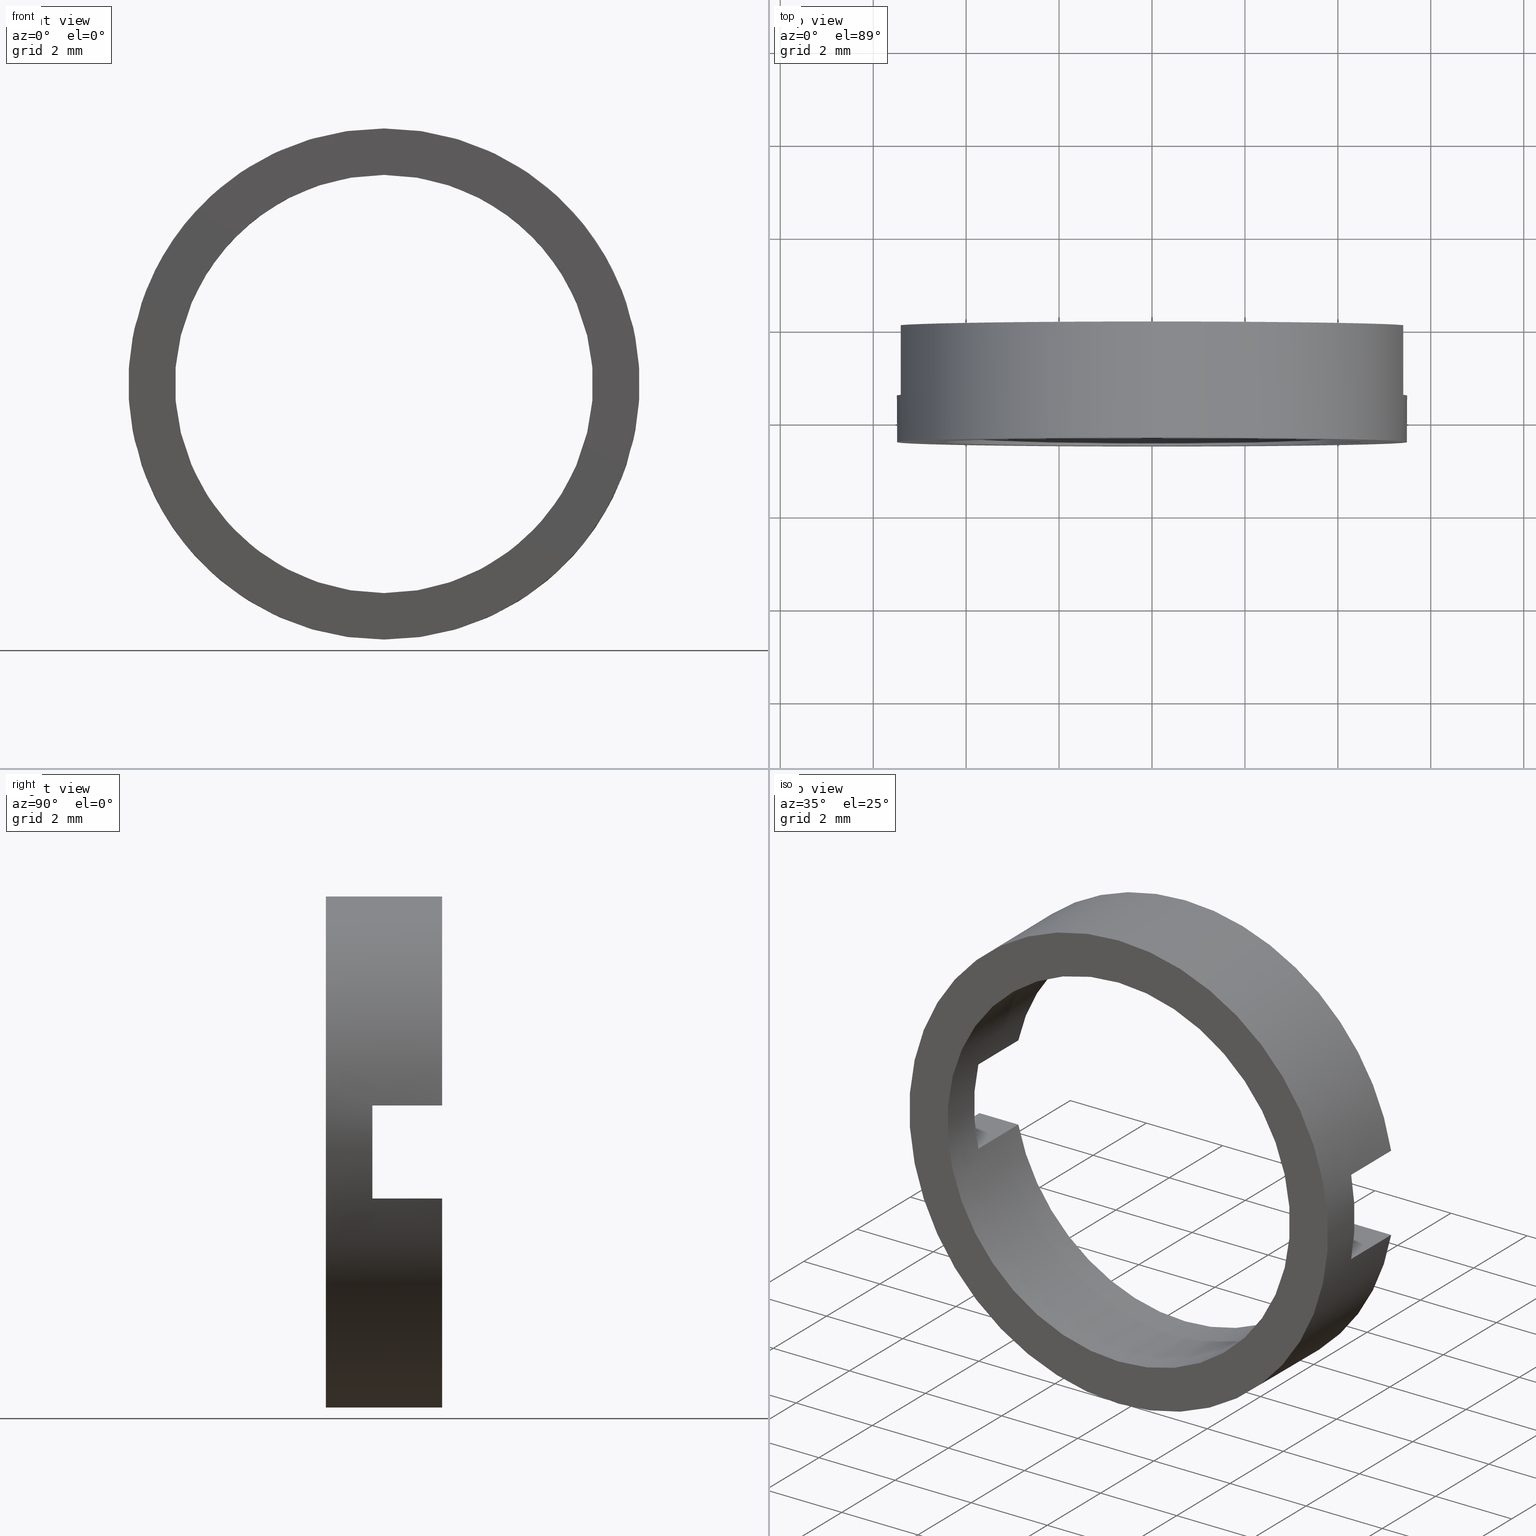
[diagram: canonical four-view strip — front | top / right | iso, engineering-drawing reading convention]
A machine part, canonical four-view strip (front | top / right | iso — engineering-drawing reading convention). The complete STEP part file that produces these views, byte-faithful:
ISO-10303-21;
HEADER;
FILE_DESCRIPTION (( 'STEP AP203' ),
    '1' );
FILE_NAME ('514017.STEP',
    '2019-09-25T08:50:53',
    ( '' ),
    ( '' ),
    'SwSTEP 2.0',
    'SolidWorks 2016',
    '' );
FILE_SCHEMA (( 'CONFIG_CONTROL_DESIGN' ));
ENDSEC;

DATA;
#1 = PERSON_AND_ORGANIZATION ( #82, #79 ) ;
#2 = ADVANCED_FACE ( 'NONE', ( #105 ), #249, .F. ) ;
#3 = ORIENTED_EDGE ( 'NONE', *, *, #559, .T. ) ;
#4 = DIRECTION ( 'NONE',  ( 0.0000000000000000000, -0.0000000000000000000, -1.000000000000000000 ) ) ;
#5 = DIRECTION ( 'NONE',  ( 0.0000000000000000000, 0.0000000000000000000, 1.000000000000000000 ) ) ;
#6 = CALENDAR_DATE ( 2019, 25, 9 ) ;
#7 = CARTESIAN_POINT ( 'NONE',  ( 0.0000000000000000000, -1.964249787179434000, 0.0000000000000000000 ) ) ;
#8 = ORIENTED_EDGE ( 'NONE', *, *, #97, .F. ) ;
#9 = LINE ( 'NONE', #203, #224 ) ;
#10 = CARTESIAN_POINT ( 'NONE',  ( 5.408326913195989700, -3.464249787179428400, 0.9999999999999995600 ) ) ;
#11 = EDGE_LOOP ( 'NONE', ( #159, #90, #284, #441 ) ) ;
#12 = AXIS2_PLACEMENT_3D ( 'NONE', #389, #346, #77 ) ;
#13 = CARTESIAN_POINT ( 'NONE',  ( 0.0000000000000000000, -3.464249787179428400, 0.0000000000000000000 ) ) ;
#14 = CARTESIAN_POINT ( 'NONE',  ( 0.0000000000000000000, -1.964249787179434000, 0.0000000000000000000 ) ) ;
#15 = CC_DESIGN_PERSON_AND_ORGANIZATION_ASSIGNMENT ( #318, #236, ( #543 ) ) ;
#16 = DIRECTION ( 'NONE',  ( 0.0000000000000000000, 1.000000000000000000, 0.0000000000000000000 ) ) ;
#17 = LOCAL_TIME ( 16, 50, 53.00000000000000000, #470 ) ;
#18 = VERTEX_POINT ( 'NONE', #451 ) ;
#19 = DIRECTION ( 'NONE',  ( -0.0000000000000000000, 1.000000000000000000, -0.0000000000000000000 ) ) ;
#20 = CARTESIAN_POINT ( 'NONE',  ( 6.735557395310450900E-016, -1.964249787179434000, -5.500000000000006200 ) ) ;
#21 = DATE_AND_TIME ( #463, #88 ) ;
#22 = AXIS2_PLACEMENT_3D ( 'NONE', #237, #550, #325 ) ;
#23 = CYLINDRICAL_SURFACE ( 'NONE', #22, 5.500000000000006200 ) ;
#24 = CC_DESIGN_PERSON_AND_ORGANIZATION_ASSIGNMENT ( #402, #412, ( #535 ) ) ;
#25 = CARTESIAN_POINT ( 'NONE',  ( 0.0000000000000000000, 56.26084262701361600, 0.0000000000000000000 ) ) ;
#26 = CARTESIAN_POINT ( 'NONE',  ( 5.408326913195990600, 56.26084262701361600, 1.000000000000000000 ) ) ;
#27 = UNCERTAINTY_MEASURE_WITH_UNIT (LENGTH_MEASURE( 1.000000000000000100E-005 ), #544, 'distance_accuracy_value', 'NONE');
#28 = CARTESIAN_POINT ( 'NONE',  ( -26.85254027261461800, -1.964249787179430900, 1.000000000000000000 ) ) ;
#29 = CC_DESIGN_PERSON_AND_ORGANIZATION_ASSIGNMENT ( #348, #536, ( #125 ) ) ;
#30 = FACE_OUTER_BOUND ( 'NONE', #185, .T. ) ;
#31 = AXIS2_PLACEMENT_3D ( 'NONE', #254, #214, #431 ) ;
#32 = EDGE_LOOP ( 'NONE', ( #314, #225 ) ) ;
#33 = CARTESIAN_POINT ( 'NONE',  ( 0.0000000000000000000, 56.26084262701361600, 5.500000000000006200 ) ) ;
#34 = COORDINATED_UNIVERSAL_TIME_OFFSET ( 8, 0, .AHEAD. ) ;
#35 = ORIENTED_EDGE ( 'NONE', *, *, #168, .T. ) ;
#36 = ORIENTED_EDGE ( 'NONE', *, *, #196, .F. ) ;
#37 = PERSON_AND_ORGANIZATION_ROLE ( 'creator' ) ;
#38 = APPLICATION_CONTEXT ( 'configuration controlled 3d designs of mechanical parts and assemblies' ) ;
#39 = EDGE_CURVE ( 'NONE', #310, #571, #260, .T. ) ;
#40 = ADVANCED_FACE ( 'NONE', ( #456 ), #48, .F. ) ;
#41 = CYLINDRICAL_SURFACE ( 'NONE', #440, 4.500000000000007100 ) ;
#42 = AXIS2_PLACEMENT_3D ( 'NONE', #7, #491, #85 ) ;
#43 = ORIENTED_EDGE ( 'NONE', *, *, #65, .F. ) ;
#44 = EDGE_CURVE ( 'NONE', #435, #418, #563, .T. ) ;
#45 = CARTESIAN_POINT ( 'NONE',  ( 4.500000000000007100, -1.964249787179430900, 0.0000000000000000000 ) ) ;
#46 = CARTESIAN_POINT ( 'NONE',  ( -26.85254027261461800, -3.464249787179431100, -1.000000000000000000 ) ) ;
#47 = COORDINATED_UNIVERSAL_TIME_OFFSET ( 8, 0, .AHEAD. ) ;
#48 = PLANE ( 'NONE',  #204 ) ;
#49 = VECTOR ( 'NONE', #481, 1000.000000000000000 ) ;
#50 = ORIENTED_EDGE ( 'NONE', *, *, #496, .F. ) ;
#51 = ORIENTED_EDGE ( 'NONE', *, *, #213, .T. ) ;
#52 = APPLICATION_PROTOCOL_DEFINITION ( 'international standard', 'config_control_design', 1994, #38 ) ;
#53 = AXIS2_PLACEMENT_3D ( 'NONE', #406, #410, #182 ) ;
#54 = DATE_TIME_ROLE ( 'classification_date' ) ;
#55 = DIRECTION ( 'NONE',  ( 0.0000000000000000000, 1.000000000000000000, 0.0000000000000000000 ) ) ;
#56 = CC_DESIGN_APPROVAL ( #323, ( #543 ) ) ;
#57 = CARTESIAN_POINT ( 'NONE',  ( 0.0000000000000000000, -3.464249787179431100, 0.0000000000000000000 ) ) ;
#58 = CIRCLE ( 'NONE', #311, 5.500000000000006200 ) ;
#59 = LINE ( 'NONE', #462, #524 ) ;
#60 = ORIENTED_EDGE ( 'NONE', *, *, #510, .T. ) ;
#61 = CC_DESIGN_DATE_AND_TIME_ASSIGNMENT ( #513, #353, ( #226 ) ) ;
#62 = AXIS2_PLACEMENT_3D ( 'NONE', #246, #158, #469 ) ;
#63 = CARTESIAN_POINT ( 'NONE',  ( -4.387482193696067500, -3.464249787179428400, 0.9999999999999995600 ) ) ;
#64 = DIRECTION ( 'NONE',  ( 0.0000000000000000000, 0.0000000000000000000, -1.000000000000000000 ) ) ;
#65 = EDGE_CURVE ( 'NONE', #96, #290, #488, .T. ) ;
#66 = CARTESIAN_POINT ( 'NONE',  ( 0.0000000000000000000, -1.964249787179434000, 4.500000000000007100 ) ) ;
#67 = DATE_AND_TIME ( #433, #215 ) ;
#68 = VECTOR ( 'NONE', #219, 1000.000000000000000 ) ;
#69 = ORIENTED_EDGE ( 'NONE', *, *, #526, .T. ) ;
#70 = ORIENTED_EDGE ( 'NONE', *, *, #39, .T. ) ;
#71 = DIRECTION ( 'NONE',  ( 0.0000000000000000000, -0.0000000000000000000, -1.000000000000000000 ) ) ;
#72 = CIRCLE ( 'NONE', #381, 5.500000000000006200 ) ;
#73 = CARTESIAN_POINT ( 'NONE',  ( -26.85254027261461800, -3.464249787179431100, -1.000000000000000000 ) ) ;
#74 = ORIENTED_EDGE ( 'NONE', *, *, #153, .F. ) ;
#75 = ORIENTED_EDGE ( 'NONE', *, *, #243, .T. ) ;
#76 = CARTESIAN_POINT ( 'NONE',  ( -5.408326913195989700, -3.464249787179428400, 0.9999999999999995600 ) ) ;
#77 = DIRECTION ( 'NONE',  ( 0.0000000000000000000, 0.0000000000000000000, 1.000000000000000000 ) ) ;
#78 = LOCAL_TIME ( 16, 50, 53.00000000000000000, #390 ) ;
#79 = ORGANIZATION ( 'δָ��', 'δָ��', '' ) ;
#80 = ORIENTED_EDGE ( 'NONE', *, *, #516, .T. ) ;
#81 = DIRECTION ( 'NONE',  ( -0.0000000000000000000, 1.000000000000000000, -0.0000000000000000000 ) ) ;
#82 = PERSON ( 'δָ��', 'δָ��', 'δָ��', ('δָ��'), ('δָ��'), ('δָ��') ) ;
#83 = DIRECTION ( 'NONE',  ( 1.000000000000000000, 0.0000000000000000000, 0.0000000000000000000 ) ) ;
#84 = AXIS2_PLACEMENT_3D ( 'NONE', #99, #273, #277 ) ;
#85 = DIRECTION ( 'NONE',  ( 0.0000000000000000000, 0.0000000000000000000, 1.000000000000000000 ) ) ;
#86 = ADVANCED_FACE ( 'NONE', ( #232 ), #98, .F. ) ;
#87 = SECURITY_CLASSIFICATION ( '', '', #534 ) ;
#88 = LOCAL_TIME ( 16, 50, 53.00000000000000000, #335 ) ;
#89 = APPLICATION_PROTOCOL_DEFINITION ( 'international standard', 'config_control_design', 1994, #438 ) ;
#90 = ORIENTED_EDGE ( 'NONE', *, *, #404, .F. ) ;
#91 = ORIENTED_EDGE ( 'NONE', *, *, #548, .T. ) ;
#92 = ADVANCED_FACE ( 'NONE', ( #359 ), #328, .T. ) ;
#93 = DATE_TIME_ROLE ( 'creation_date' ) ;
#94 = EDGE_CURVE ( 'NONE', #377, #96, #111, .T. ) ;
#95 = VECTOR ( 'NONE', #366, 1000.000000000000000 ) ;
#96 = VERTEX_POINT ( 'NONE', #321 ) ;
#97 = EDGE_CURVE ( 'NONE', #322, #201, #133, .T. ) ;
#98 = PLANE ( 'NONE',  #387 ) ;
#99 = CARTESIAN_POINT ( 'NONE',  ( 0.0000000000000000000, 56.26084262701361600, 0.0000000000000000000 ) ) ;
#100 = LOCAL_TIME ( 16, 50, 53.00000000000000000, #47 ) ;
#101 = PERSON_AND_ORGANIZATION_ROLE ( 'creator' ) ;
#102 = DIRECTION ( 'NONE',  ( 0.0000000000000000000, 0.0000000000000000000, -1.000000000000000000 ) ) ;
#103 = APPROVAL_DATE_TIME ( #287, #323 ) ;
#104 = ORIENTED_EDGE ( 'NONE', *, *, #229, .T. ) ;
#105 = FACE_OUTER_BOUND ( 'NONE', #546, .T. ) ;
#106 = AXIS2_PLACEMENT_3D ( 'NONE', #14, #365, #415 ) ;
#107 = CARTESIAN_POINT ( 'NONE',  ( 0.0000000000000000000, -3.464249787179428400, 0.0000000000000000000 ) ) ;
#108 = CC_DESIGN_PERSON_AND_ORGANIZATION_ASSIGNMENT ( #530, #490, ( #221 ) ) ;
#109 = DIRECTION ( 'NONE',  ( 0.0000000000000000000, 1.000000000000000000, 0.0000000000000000000 ) ) ;
#110 = PERSON_AND_ORGANIZATION ( #82, #79 ) ;
#111 = CIRCLE ( 'NONE', #106, 4.500000000000007100 ) ;
#112 = DIRECTION ( 'NONE',  ( 0.0000000000000000000, -1.000000000000000000, 0.0000000000000000000 ) ) ;
#113 = VERTEX_POINT ( 'NONE', #10 ) ;
#114 = DIRECTION ( 'NONE',  ( -0.0000000000000000000, 1.000000000000000000, -0.0000000000000000000 ) ) ;
#115 = AXIS2_PLACEMENT_3D ( 'NONE', #414, #421, #509 ) ;
#116 = CARTESIAN_POINT ( 'NONE',  ( 0.0000000000000000000, -4.464249787179428900, 5.500000000000006200 ) ) ;
#117 = APPROVAL_PERSON_ORGANIZATION ( #199, #166, #134 ) ;
#118 = VECTOR ( 'NONE', #297, 1000.000000000000000 ) ;
#119 = ORIENTED_EDGE ( 'NONE', *, *, #466, .T. ) ;
#120 = CIRCLE ( 'NONE', #138, 5.500000000000006200 ) ;
#121 = CC_DESIGN_DATE_AND_TIME_ASSIGNMENT ( #21, #54, ( #87 ) ) ;
#122 = DIRECTION ( 'NONE',  ( -1.000000000000000000, -0.0000000000000000000, -0.0000000000000000000 ) ) ;
#123 = CARTESIAN_POINT ( 'NONE',  ( 5.510910596163098400E-016, -1.964249787179434000, -4.500000000000007100 ) ) ;
#124 = CARTESIAN_POINT ( 'NONE',  ( -4.387482193696068400, 56.26084262701361600, 1.000000000000000000 ) ) ;
#125 = PRODUCT_DEFINITION_FORMATION_WITH_SPECIFIED_SOURCE ( '�κ�', '', #221, .NOT_KNOWN. ) ;
#126 = DATE_AND_TIME ( #189, #485 ) ;
#127 = CIRCLE ( 'NONE', #250, 4.500000000000007100 ) ;
#128 = ORIENTED_EDGE ( 'NONE', *, *, #493, .F. ) ;
#129 = CARTESIAN_POINT ( 'NONE',  ( 0.0000000000000000000, -1.964249787179434000, 0.0000000000000000000 ) ) ;
#130 = EDGE_CURVE ( 'NONE', #385, #517, #59, .T. ) ;
#131 = CARTESIAN_POINT ( 'NONE',  ( 5.408326913195990600, 56.26084262701361600, -1.000000000000000000 ) ) ;
#132 = DIRECTION ( 'NONE',  ( 1.000000000000000000, 0.0000000000000000000, 0.0000000000000000000 ) ) ;
#133 = LINE ( 'NONE', #197, #464 ) ;
#134 = APPROVAL_ROLE ( '' ) ;
#135 = VERTEX_POINT ( 'NONE', #63 ) ;
#136 = APPROVAL_STATUS ( 'not_yet_approved' ) ;
#137 = ADVANCED_FACE ( 'NONE', ( #30 ), #317, .T. ) ;
#138 = AXIS2_PLACEMENT_3D ( 'NONE', #521, #114, #567 ) ;
#139 = CC_DESIGN_PERSON_AND_ORGANIZATION_ASSIGNMENT ( #235, #306, ( #87 ) ) ;
#140 = APPROVAL_PERSON_ORGANIZATION ( #1, #341, #349 ) ;
#141 = EDGE_CURVE ( 'NONE', #542, #308, #309, .T. ) ;
#142 = VECTOR ( 'NONE', #194, 1000.000000000000000 ) ;
#143 = VERTEX_POINT ( 'NONE', #505 ) ;
#144 = LINE ( 'NONE', #303, #68 ) ;
#145 = APPLICATION_PROTOCOL_DEFINITION ( 'international standard', 'config_control_design', 1994, #355 ) ;
#146 = VERTEX_POINT ( 'NONE', #282 ) ;
#147 = LINE ( 'NONE', #293, #362 ) ;
#148 = ORIENTED_EDGE ( 'NONE', *, *, #94, .F. ) ;
#149 = PRODUCT_DEFINITION ( 'δ֪', '', #125, #234 ) ;
#150 = CIRCLE ( 'NONE', #12, 4.500000000000007100 ) ;
#151 = FACE_OUTER_BOUND ( 'NONE', #295, .T. ) ;
#152 = ORIENTED_EDGE ( 'NONE', *, *, #427, .T. ) ;
#153 = EDGE_CURVE ( 'NONE', #135, #290, #127, .T. ) ;
#154 = DIRECTION ( 'NONE',  ( 1.000000000000000000, 0.0000000000000000000, 0.0000000000000000000 ) ) ;
#155 = DIRECTION ( 'NONE',  ( -0.0000000000000000000, 1.000000000000000000, -0.0000000000000000000 ) ) ;
#156 = APPROVAL_PERSON_ORGANIZATION ( #428, #253, #585 ) ;
#157 = APPROVAL_PERSON_ORGANIZATION ( #283, #195, #278 ) ;
#158 = DIRECTION ( 'NONE',  ( -0.0000000000000000000, 0.0000000000000000000, 1.000000000000000000 ) ) ;
#159 = ORIENTED_EDGE ( 'NONE', *, *, #356, .T. ) ;
#160 = ORIENTED_EDGE ( 'NONE', *, *, #493, .T. ) ;
#161 = CARTESIAN_POINT ( 'NONE',  ( 0.0000000000000000000, 56.26084262701361600, 4.500000000000007100 ) ) ;
#162 = CARTESIAN_POINT ( 'NONE',  ( -4.387482193696067500, -3.464249787179428400, -0.9999999999999995600 ) ) ;
#163 = AXIS2_PLACEMENT_3D ( 'NONE', #13, #16, #507 ) ;
#164 = CALENDAR_DATE ( 2019, 25, 9 ) ;
#165 = ORIENTED_EDGE ( 'NONE', *, *, #391, .T. ) ;
#166 = APPROVAL ( #397, 'δָ��' ) ;
#167 = CARTESIAN_POINT ( 'NONE',  ( -26.85254027261461800, -3.464249787179431100, 1.000000000000000000 ) ) ;
#168 = EDGE_CURVE ( 'NONE', #542, #272, #384, .T. ) ;
#169 = DIRECTION ( 'NONE',  ( 0.0000000000000000000, 0.0000000000000000000, 1.000000000000000000 ) ) ;
#170 = ADVANCED_FACE ( 'NONE', ( #448 ), #561, .F. ) ;
#171 = CARTESIAN_POINT ( 'NONE',  ( -4.387482193696067500, -1.964249787179434000, 0.9999999999999995600 ) ) ;
#172 = LINE ( 'NONE', #28, #49 ) ;
#173 = ORIENTED_EDGE ( 'NONE', *, *, #305, .T. ) ;
#174 = ORIENTED_EDGE ( 'NONE', *, *, #97, .T. ) ;
#175 = APPROVAL_STATUS ( 'not_yet_approved' ) ;
#176 = PERSON_AND_ORGANIZATION_ROLE ( 'creator' ) ;
#177 = CC_DESIGN_APPROVAL ( #253, ( #149 ) ) ;
#178 = DIRECTION ( 'NONE',  ( 1.000000000000000000, 0.0000000000000000000, 0.0000000000000000000 ) ) ;
#179 = ORIENTED_EDGE ( 'NONE', *, *, #141, .F. ) ;
#180 = ADVANCED_FACE ( 'NONE', ( #344 ), #23, .T. ) ;
#181 = EDGE_CURVE ( 'NONE', #146, #517, #434, .T. ) ;
#182 = DIRECTION ( 'NONE',  ( 0.0000000000000000000, 0.0000000000000000000, 1.000000000000000000 ) ) ;
#183 = APPROVAL_DATE_TIME ( #568, #195 ) ;
#184 = ORIENTED_EDGE ( 'NONE', *, *, #484, .T. ) ;
#185 = EDGE_LOOP ( 'NONE', ( #165, #174, #291, #80 ) ) ;
#186 = APPLICATION_CONTEXT ( 'configuration controlled 3d designs of mechanical parts and assemblies' ) ;
#187 = DIRECTION ( 'NONE',  ( 0.0000000000000000000, 0.0000000000000000000, 1.000000000000000000 ) ) ;
#188 = CARTESIAN_POINT ( 'NONE',  ( -26.85254027261461800, -1.964249787179430900, -1.000000000000000000 ) ) ;
#189 = CALENDAR_DATE ( 2019, 25, 9 ) ;
#190 = CIRCLE ( 'NONE', #380, 5.500000000000006200 ) ;
#191 = ORIENTED_EDGE ( 'NONE', *, *, #243, .F. ) ;
#192 = AXIS2_PLACEMENT_3D ( 'NONE', #407, #547, #5 ) ;
#193 = ORIENTED_EDGE ( 'NONE', *, *, #153, .T. ) ;
#194 = DIRECTION ( 'NONE',  ( -0.0000000000000000000, 1.000000000000000000, -0.0000000000000000000 ) ) ;
#195 = APPROVAL ( #549, 'δָ��' ) ;
#196 = EDGE_CURVE ( 'NONE', #556, #570, #216, .T. ) ;
#197 = CARTESIAN_POINT ( 'NONE',  ( -26.85254027261461800, -3.464249787179431100, -1.000000000000000000 ) ) ;
#198 = DIRECTION ( 'NONE',  ( -0.0000000000000000000, 1.000000000000000000, -0.0000000000000000000 ) ) ;
#199 = PERSON_AND_ORGANIZATION ( #82, #79 ) ;
#200 = SHAPE_DEFINITION_REPRESENTATION ( #411, #288 ) ;
#201 = VERTEX_POINT ( 'NONE', #280 ) ;
#202 = DIRECTION ( 'NONE',  ( -0.0000000000000000000, 1.000000000000000000, -0.0000000000000000000 ) ) ;
#203 = CARTESIAN_POINT ( 'NONE',  ( -26.85254027261461800, -1.964249787179430900, 1.000000000000000000 ) ) ;
#204 = AXIS2_PLACEMENT_3D ( 'NONE', #45, #312, #4 ) ;
#205 = DIRECTION ( 'NONE',  ( 0.0000000000000000000, 0.0000000000000000000, 1.000000000000000000 ) ) ;
#206 = LOCAL_TIME ( 16, 50, 53.00000000000000000, #392 ) ;
#207 = CC_DESIGN_PERSON_AND_ORGANIZATION_ASSIGNMENT ( #274, #267, ( #573 ) ) ;
#208 = ORIENTED_EDGE ( 'NONE', *, *, #537, .F. ) ;
#209 = FACE_OUTER_BOUND ( 'NONE', #409, .T. ) ;
#210 = ORIENTED_EDGE ( 'NONE', *, *, #352, .F. ) ;
#211 = CARTESIAN_POINT ( 'NONE',  ( 5.510910596163098400E-016, 56.26084262701361600, -4.500000000000007100 ) ) ;
#212 = DIRECTION ( 'NONE',  ( -0.0000000000000000000, 1.000000000000000000, -0.0000000000000000000 ) ) ;
#213 = EDGE_CURVE ( 'NONE', #272, #18, #120, .T. ) ;
#214 = DIRECTION ( 'NONE',  ( -0.0000000000000000000, -1.000000000000000000, -0.0000000000000000000 ) ) ;
#215 = LOCAL_TIME ( 16, 50, 53.00000000000000000, #329 ) ;
#216 = LINE ( 'NONE', #188, #95 ) ;
#217 = PRODUCT_DEFINITION_SHAPE ( 'NONE', 'NONE',  #543 ) ;
#218 = ORIENTED_EDGE ( 'NONE', *, *, #44, .F. ) ;
#219 = DIRECTION ( 'NONE',  ( 0.0000000000000000000, -1.000000000000000000, 0.0000000000000000000 ) ) ;
#220 = CARTESIAN_POINT ( 'NONE',  ( 4.387482193696067500, -1.964249787179434000, 0.9999999999999995600 ) ) ;
#221 = PRODUCT ( '514017', '514017', '', ( #261 ) ) ;
#222 = CALENDAR_DATE ( 2019, 25, 9 ) ;
#223 = CARTESIAN_POINT ( 'NONE',  ( 0.0000000000000000000, 0.0000000000000000000, 0.0000000000000000000 ) ) ;
#224 = VECTOR ( 'NONE', #154, 1000.000000000000000 ) ;
#225 = ORIENTED_EDGE ( 'NONE', *, *, #352, .T. ) ;
#226 = SECURITY_CLASSIFICATION ( '', '', #265 ) ;
#227 = CARTESIAN_POINT ( 'NONE',  ( 5.408326913195975500, -1.964249787179430900, -1.000000000000000000 ) ) ;
#228 = CC_DESIGN_PERSON_AND_ORGANIZATION_ASSIGNMENT ( #580, #101, ( #573 ) ) ;
#229 = EDGE_CURVE ( 'NONE', #201, #570, #506, .T. ) ;
#230 = ADVANCED_FACE ( 'NONE', ( #494, #271 ), #373, .F. ) ;
#231 = DATE_AND_TIME ( #222, #17 ) ;
#232 = FACE_OUTER_BOUND ( 'NONE', #241, .T. ) ;
#233 = ORIENTED_EDGE ( 'NONE', *, *, #168, .F. ) ;
#234 = DESIGN_CONTEXT ( 'detailed design', #186, 'design' ) ;
#235 = PERSON_AND_ORGANIZATION ( #82, #79 ) ;
#236 = PERSON_AND_ORGANIZATION_ROLE ( 'creator' ) ;
#237 = CARTESIAN_POINT ( 'NONE',  ( 0.0000000000000000000, 56.26084262701361600, 0.0000000000000000000 ) ) ;
#238 = CYLINDRICAL_SURFACE ( 'NONE', #475, 5.500000000000006200 ) ;
#239 = ORIENTED_EDGE ( 'NONE', *, *, #130, .T. ) ;
#240 = CIRCLE ( 'NONE', #449, 5.500000000000006200 ) ;
#241 = EDGE_LOOP ( 'NONE', ( #313, #405, #8, #583 ) ) ;
#242 = APPROVAL_DATE_TIME ( #374, #166 ) ;
#243 = EDGE_CURVE ( 'NONE', #290, #146, #584, .T. ) ;
#244 = ORIENTED_EDGE ( 'NONE', *, *, #548, .F. ) ;
#245 = EDGE_CURVE ( 'NONE', #96, #18, #419, .T. ) ;
#246 = CARTESIAN_POINT ( 'NONE',  ( -26.85254027261461800, -3.464249787179431100, 1.000000000000000000 ) ) ;
#247 = DIRECTION ( 'NONE',  ( 0.0000000000000000000, -1.000000000000000000, 0.0000000000000000000 ) ) ;
#248 = PERSON_AND_ORGANIZATION ( #82, #79 ) ;
#249 = CYLINDRICAL_SURFACE ( 'NONE', #84, 4.500000000000007100 ) ;
#250 = AXIS2_PLACEMENT_3D ( 'NONE', #107, #285, #187 ) ;
#251 = DIRECTION ( 'NONE',  ( 0.0000000000000000000, 0.0000000000000000000, 1.000000000000000000 ) ) ;
#252 = LINE ( 'NONE', #436, #294 ) ;
#253 = APPROVAL ( #364, 'δָ��' ) ;
#254 = CARTESIAN_POINT ( 'NONE',  ( 0.0000000000000000000, -3.464249787179428400, 0.0000000000000000000 ) ) ;
#255 = VERTEX_POINT ( 'NONE', #518 ) ;
#256 = EDGE_CURVE ( 'NONE', #255, #143, #240, .T. ) ;
#257 = CARTESIAN_POINT ( 'NONE',  ( 0.0000000000000000000, -4.464249787179428900, 4.500000000000007100 ) ) ;
#258 = DIRECTION ( 'NONE',  ( 1.000000000000000000, 0.0000000000000000000, 0.0000000000000000000 ) ) ;
#259 = ORIENTED_EDGE ( 'NONE', *, *, #482, .F. ) ;
#260 = CIRCLE ( 'NONE', #192, 4.500000000000007100 ) ;
#261 = MECHANICAL_CONTEXT ( 'NONE', #438, 'mechanical' ) ;
#262 = ORIENTED_EDGE ( 'NONE', *, *, #245, .T. ) ;
#263 = AXIS2_PLACEMENT_3D ( 'NONE', #333, #425, #205 ) ;
#264 = ADVANCED_FACE ( 'NONE', ( #151 ), #511, .F. ) ;
#265 = SECURITY_CLASSIFICATION_LEVEL ( 'unclassified' ) ;
#266 = CC_DESIGN_APPROVAL ( #195, ( #573 ) ) ;
#267 = PERSON_AND_ORGANIZATION_ROLE ( 'design_supplier' ) ;
#268 = ADVANCED_FACE ( 'NONE', ( #368 ), #426, .F. ) ;
#269 = DIRECTION ( 'NONE',  ( 0.0000000000000000000, 0.0000000000000000000, 1.000000000000000000 ) ) ;
#270 = VECTOR ( 'NONE', #83, 1000.000000000000000 ) ;
#271 = FACE_BOUND ( 'NONE', #32, .T. ) ;
#272 = VERTEX_POINT ( 'NONE', #20 ) ;
#273 = DIRECTION ( 'NONE',  ( -0.0000000000000000000, 1.000000000000000000, -0.0000000000000000000 ) ) ;
#274 = PERSON_AND_ORGANIZATION ( #82, #79 ) ;
#275 = LINE ( 'NONE', #211, #375 ) ;
#276 = ORIENTED_EDGE ( 'NONE', *, *, #391, .F. ) ;
#277 = DIRECTION ( 'NONE',  ( 0.0000000000000000000, 0.0000000000000000000, 1.000000000000000000 ) ) ;
#278 = APPROVAL_ROLE ( '' ) ;
#279 = CARTESIAN_POINT ( 'NONE',  ( -26.85254027261461800, -1.964249787179430900, -1.000000000000000000 ) ) ;
#280 = CARTESIAN_POINT ( 'NONE',  ( 4.387482193696067500, -3.464249787179428400, -0.9999999999999995600 ) ) ;
#281 = AXIS2_PLACEMENT_3D ( 'NONE', #483, #574, #258 ) ;
#282 = CARTESIAN_POINT ( 'NONE',  ( -5.408326913195989700, -3.464249787179428400, -0.9999999999999995600 ) ) ;
#283 = PERSON_AND_ORGANIZATION ( #82, #79 ) ;
#284 = ORIENTED_EDGE ( 'NONE', *, *, #466, .F. ) ;
#285 = DIRECTION ( 'NONE',  ( -0.0000000000000000000, -1.000000000000000000, -0.0000000000000000000 ) ) ;
#286 = CALENDAR_DATE ( 2019, 25, 9 ) ;
#287 = DATE_AND_TIME ( #350, #514 ) ;
#288 = ADVANCED_BREP_SHAPE_REPRESENTATION ( '514017', ( #552, #417 ), #551 ) ;
#289 = CARTESIAN_POINT ( 'NONE',  ( 4.500000000000007100, -1.964249787179430900, 0.0000000000000000000 ) ) ;
#290 = VERTEX_POINT ( 'NONE', #162 ) ;
#291 = ORIENTED_EDGE ( 'NONE', *, *, #482, .T. ) ;
#292 = AXIS2_PLACEMENT_3D ( 'NONE', #57, #55, #326 ) ;
#293 = CARTESIAN_POINT ( 'NONE',  ( -5.408326913195990600, 56.26084262701361600, -1.000000000000000000 ) ) ;
#294 = VECTOR ( 'NONE', #577, 1000.000000000000000 ) ;
#295 = EDGE_LOOP ( 'NONE', ( #69, #360, #208, #564, #424, #472 ) ) ;
#296 = ORIENTED_EDGE ( 'NONE', *, *, #526, .F. ) ;
#297 = DIRECTION ( 'NONE',  ( 0.0000000000000000000, -1.000000000000000000, 0.0000000000000000000 ) ) ;
#298 = AXIS2_PLACEMENT_3D ( 'NONE', #461, #109, #423 ) ;
#299 = DIRECTION ( 'NONE',  ( 0.0000000000000000000, 0.0000000000000000000, 1.000000000000000000 ) ) ;
#300 = DATE_AND_TIME ( #6, #78 ) ;
#301 = LINE ( 'NONE', #33, #581 ) ;
#302 = ORIENTED_EDGE ( 'NONE', *, *, #422, .F. ) ;
#303 = CARTESIAN_POINT ( 'NONE',  ( 4.387482193696068400, 56.26084262701361600, 1.000000000000000000 ) ) ;
#304 =( NAMED_UNIT ( * ) SI_UNIT ( $, .STERADIAN. ) SOLID_ANGLE_UNIT ( ) );
#305 = EDGE_CURVE ( 'NONE', #146, #18, #147, .T. ) ;
#306 = PERSON_AND_ORGANIZATION_ROLE ( 'classification_officer' ) ;
#307 = COORDINATED_UNIVERSAL_TIME_OFFSET ( 8, 0, .AHEAD. ) ;
#308 = VERTEX_POINT ( 'NONE', #116 ) ;
#309 = CIRCLE ( 'NONE', #115, 5.500000000000006200 ) ;
#310 = VERTEX_POINT ( 'NONE', #66 ) ;
#311 = AXIS2_PLACEMENT_3D ( 'NONE', #394, #388, #299 ) ;
#312 = DIRECTION ( 'NONE',  ( 0.0000000000000000000, -1.000000000000000000, 0.0000000000000000000 ) ) ;
#313 = ORIENTED_EDGE ( 'NONE', *, *, #196, .T. ) ;
#314 = ORIENTED_EDGE ( 'NONE', *, *, #44, .T. ) ;
#315 = APPLICATION_PROTOCOL_DEFINITION ( 'international standard', 'config_control_design', 1994, #186 ) ;
#316 = AXIS2_PLACEMENT_3D ( 'NONE', #289, #247, #71 ) ;
#317 = PLANE ( 'NONE',  #298 ) ;
#318 = PERSON_AND_ORGANIZATION ( #82, #79 ) ;
#319 = EDGE_LOOP ( 'NONE', ( #531, #128, #554, #579 ) ) ;
#320 = VECTOR ( 'NONE', #155, 1000.000000000000000 ) ;
#321 = CARTESIAN_POINT ( 'NONE',  ( -4.387482193696067500, -1.964249787179434000, -0.9999999999999995600 ) ) ;
#322 = VERTEX_POINT ( 'NONE', #378 ) ;
#323 = APPROVAL ( #437, 'δָ��' ) ;
#324 = EDGE_CURVE ( 'NONE', #113, #143, #351, .T. ) ;
#325 = DIRECTION ( 'NONE',  ( 0.0000000000000000000, 0.0000000000000000000, 1.000000000000000000 ) ) ;
#326 = DIRECTION ( 'NONE',  ( 0.0000000000000000000, -0.0000000000000000000, 1.000000000000000000 ) ) ;
#327 = AXIS2_PLACEMENT_3D ( 'NONE', #332, #512, #467 ) ;
#328 = PLANE ( 'NONE',  #292 ) ;
#329 = COORDINATED_UNIVERSAL_TIME_OFFSET ( 8, 0, .AHEAD. ) ;
#330 = FACE_OUTER_BOUND ( 'NONE', #480, .T. ) ;
#331 = ORIENTED_EDGE ( 'NONE', *, *, #484, .F. ) ;
#332 = CARTESIAN_POINT ( 'NONE',  ( 4.500000000000007100, -4.464249787179429800, 0.0000000000000000000 ) ) ;
#333 = CARTESIAN_POINT ( 'NONE',  ( 0.0000000000000000000, -4.464249787179428900, 0.0000000000000000000 ) ) ;
#334 = CARTESIAN_POINT ( 'NONE',  ( -5.408326913195995900, -1.964249787179430900, 1.000000000000000000 ) ) ;
#335 = COORDINATED_UNIVERSAL_TIME_OFFSET ( 8, 0, .AHEAD. ) ;
#336 = APPROVAL_PERSON_ORGANIZATION ( #471, #323, #501 ) ;
#337 = CARTESIAN_POINT ( 'NONE',  ( 0.0000000000000000000, -3.464249787179428400, 0.0000000000000000000 ) ) ;
#338 = ORIENTED_EDGE ( 'NONE', *, *, #324, .T. ) ;
#339 = VECTOR ( 'NONE', #566, 1000.000000000000000 ) ;
#340 = ORIENTED_EDGE ( 'NONE', *, *, #370, .T. ) ;
#341 = APPROVAL ( #175, 'δָ��' ) ;
#342 = DIRECTION ( 'NONE',  ( -0.0000000000000000000, 1.000000000000000000, -0.0000000000000000000 ) ) ;
#343 = COORDINATED_UNIVERSAL_TIME_OFFSET ( 8, 0, .AHEAD. ) ;
#344 = FACE_OUTER_BOUND ( 'NONE', #465, .T. ) ;
#345 = ORIENTED_EDGE ( 'NONE', *, *, #181, .T. ) ;
#346 = DIRECTION ( 'NONE',  ( -0.0000000000000000000, 1.000000000000000000, -0.0000000000000000000 ) ) ;
#347 = DIRECTION ( 'NONE',  ( -0.0000000000000000000, 1.000000000000000000, -0.0000000000000000000 ) ) ;
#348 = PERSON_AND_ORGANIZATION ( #82, #79 ) ;
#349 = APPROVAL_ROLE ( '' ) ;
#350 = CALENDAR_DATE ( 2019, 25, 9 ) ;
#351 = LINE ( 'NONE', #26, #339 ) ;
#352 = EDGE_CURVE ( 'NONE', #418, #435, #474, .T. ) ;
#353 = DATE_TIME_ROLE ( 'classification_date' ) ;
#354 = CC_DESIGN_SECURITY_CLASSIFICATION ( #87, ( #573 ) ) ;
#355 = APPLICATION_CONTEXT ( 'configuration controlled 3d designs of mechanical parts and assemblies' ) ;
#356 = EDGE_CURVE ( 'NONE', #385, #515, #9, .T. ) ;
#357 = DIRECTION ( 'NONE',  ( 0.0000000000000000000, -1.000000000000000000, 0.0000000000000000000 ) ) ;
#358 = LOCAL_TIME ( 16, 50, 53.00000000000000000, #307 ) ;
#359 = FACE_OUTER_BOUND ( 'NONE', #525, .T. ) ;
#360 = ORIENTED_EDGE ( 'NONE', *, *, #256, .T. ) ;
#361 = PERSON_AND_ORGANIZATION ( #82, #79 ) ;
#362 = VECTOR ( 'NONE', #19, 1000.000000000000000 ) ;
#363 = EDGE_LOOP ( 'NONE', ( #152, #51, #508, #148, #331, #36 ) ) ;
#364 = APPROVAL_STATUS ( 'not_yet_approved' ) ;
#365 = DIRECTION ( 'NONE',  ( -0.0000000000000000000, 1.000000000000000000, -0.0000000000000000000 ) ) ;
#366 = DIRECTION ( 'NONE',  ( -1.000000000000000000, -0.0000000000000000000, -0.0000000000000000000 ) ) ;
#367 = CC_DESIGN_DATE_AND_TIME_ASSIGNMENT ( #126, #93, ( #149 ) ) ;
#368 = FACE_OUTER_BOUND ( 'NONE', #319, .T. ) ;
#369 = ORIENTED_EDGE ( 'NONE', *, *, #213, .F. ) ;
#370 = EDGE_CURVE ( 'NONE', #435, #310, #442, .T. ) ;
#371 = DIRECTION ( 'NONE',  ( -1.000000000000000000, -0.0000000000000000000, -0.0000000000000000000 ) ) ;
#372 = CARTESIAN_POINT ( 'NONE',  ( 0.0000000000000000000, -1.964249787179434000, 0.0000000000000000000 ) ) ;
#373 = PLANE ( 'NONE',  #327 ) ;
#374 = DATE_AND_TIME ( #479, #358 ) ;
#375 = VECTOR ( 'NONE', #81, 1000.000000000000000 ) ;
#376 = ORIENTED_EDGE ( 'NONE', *, *, #427, .F. ) ;
#377 = VERTEX_POINT ( 'NONE', #123 ) ;
#378 = CARTESIAN_POINT ( 'NONE',  ( 5.408326913195989700, -3.464249787179428400, -0.9999999999999995600 ) ) ;
#379 = CC_DESIGN_SECURITY_CLASSIFICATION ( #226, ( #125 ) ) ;
#380 = AXIS2_PLACEMENT_3D ( 'NONE', #129, #212, #169 ) ;
#381 = AXIS2_PLACEMENT_3D ( 'NONE', #528, #347, #251 ) ;
#382 = LINE ( 'NONE', #167, #270 ) ;
#383 = CARTESIAN_POINT ( 'NONE',  ( 0.0000000000000000000, 56.26084262701361600, 0.0000000000000000000 ) ) ;
#384 = LINE ( 'NONE', #560, #457 ) ;
#385 = VERTEX_POINT ( 'NONE', #334 ) ;
#386 = DIRECTION ( 'NONE',  ( -0.0000000000000000000, 1.000000000000000000, -0.0000000000000000000 ) ) ;
#387 = AXIS2_PLACEMENT_3D ( 'NONE', #46, #64, #557 ) ;
#388 = DIRECTION ( 'NONE',  ( -0.0000000000000000000, 1.000000000000000000, -0.0000000000000000000 ) ) ;
#389 = CARTESIAN_POINT ( 'NONE',  ( 0.0000000000000000000, -1.964249787179434000, 0.0000000000000000000 ) ) ;
#390 = COORDINATED_UNIVERSAL_TIME_OFFSET ( 8, 0, .AHEAD. ) ;
#391 = EDGE_CURVE ( 'NONE', #113, #322, #555, .T. ) ;
#392 = COORDINATED_UNIVERSAL_TIME_OFFSET ( 8, 0, .AHEAD. ) ;
#393 = ORIENTED_EDGE ( 'NONE', *, *, #256, .F. ) ;
#394 = CARTESIAN_POINT ( 'NONE',  ( 0.0000000000000000000, -4.464249787179428900, 0.0000000000000000000 ) ) ;
#395 = ORIENTED_EDGE ( 'NONE', *, *, #305, .F. ) ;
#396 = ADVANCED_FACE ( 'NONE', ( #209 ), #41, .F. ) ;
#397 = APPROVAL_STATUS ( 'not_yet_approved' ) ;
#398 = ADVANCED_FACE ( 'NONE', ( #330 ), #238, .T. ) ;
#399 = MECHANICAL_CONTEXT ( 'NONE', #38, 'mechanical' ) ;
#400 = CC_DESIGN_PERSON_AND_ORGANIZATION_ASSIGNMENT ( #110, #401, ( #226 ) ) ;
#401 = PERSON_AND_ORGANIZATION_ROLE ( 'classification_officer' ) ;
#402 = PERSON_AND_ORGANIZATION ( #82, #79 ) ;
#403 = VECTOR ( 'NONE', #122, 1000.000000000000000 ) ;
#404 = EDGE_CURVE ( 'NONE', #135, #515, #429, .T. ) ;
#405 = ORIENTED_EDGE ( 'NONE', *, *, #229, .F. ) ;
#406 = CARTESIAN_POINT ( 'NONE',  ( 0.0000000000000000000, -4.464249787179428900, 0.0000000000000000000 ) ) ;
#407 = CARTESIAN_POINT ( 'NONE',  ( 0.0000000000000000000, -1.964249787179434000, 0.0000000000000000000 ) ) ;
#408 = COORDINATED_UNIVERSAL_TIME_OFFSET ( 8, 0, .AHEAD. ) ;
#409 = EDGE_LOOP ( 'NONE', ( #302, #218, #340, #70, #160, #259, #104, #184 ) ) ;
#410 = DIRECTION ( 'NONE',  ( -0.0000000000000000000, 1.000000000000000000, -0.0000000000000000000 ) ) ;
#411 = PRODUCT_DEFINITION_SHAPE ( 'NONE', 'NONE',  #149 ) ;
#412 = PERSON_AND_ORGANIZATION_ROLE ( 'design_owner' ) ;
#413 = PRODUCT_RELATED_PRODUCT_CATEGORY ( 'detail', '', ( #221 ) ) ;
#414 = CARTESIAN_POINT ( 'NONE',  ( 0.0000000000000000000, -4.464249787179428900, 0.0000000000000000000 ) ) ;
#415 = DIRECTION ( 'NONE',  ( 0.0000000000000000000, 0.0000000000000000000, 1.000000000000000000 ) ) ;
#416 = DATE_AND_TIME ( #164, #206 ) ;
#417 = AXIS2_PLACEMENT_3D ( 'NONE', #223, #269, #178 ) ;
#418 = VERTEX_POINT ( 'NONE', #432 ) ;
#419 = LINE ( 'NONE', #279, #403 ) ;
#420 = EDGE_LOOP ( 'NONE', ( #191, #43, #262, #395 ) ) ;
#421 = DIRECTION ( 'NONE',  ( -0.0000000000000000000, 1.000000000000000000, -0.0000000000000000000 ) ) ;
#422 = EDGE_CURVE ( 'NONE', #418, #377, #275, .T. ) ;
#423 = DIRECTION ( 'NONE',  ( 0.0000000000000000000, -0.0000000000000000000, 1.000000000000000000 ) ) ;
#424 = ORIENTED_EDGE ( 'NONE', *, *, #559, .F. ) ;
#425 = DIRECTION ( 'NONE',  ( -0.0000000000000000000, 1.000000000000000000, -0.0000000000000000000 ) ) ;
#426 = PLANE ( 'NONE',  #62 ) ;
#427 = EDGE_CURVE ( 'NONE', #556, #272, #190, .T. ) ;
#428 = PERSON_AND_ORGANIZATION ( #82, #79 ) ;
#429 = LINE ( 'NONE', #124, #539 ) ;
#430 = EDGE_LOOP ( 'NONE', ( #50, #179 ) ) ;
#431 = DIRECTION ( 'NONE',  ( 8.881784197001253900E-015, 0.0000000000000000000, 1.000000000000000000 ) ) ;
#432 = CARTESIAN_POINT ( 'NONE',  ( 5.510910596163098400E-016, -4.464249787179428900, -4.500000000000007100 ) ) ;
#433 = CALENDAR_DATE ( 2019, 25, 9 ) ;
#434 = CIRCLE ( 'NONE', #163, 5.500000000000006200 ) ;
#435 = VERTEX_POINT ( 'NONE', #257 ) ;
#436 = CARTESIAN_POINT ( 'NONE',  ( -26.85254027261461800, -3.464249787179431100, 1.000000000000000000 ) ) ;
#437 = APPROVAL_STATUS ( 'not_yet_approved' ) ;
#438 = APPLICATION_CONTEXT ( 'configuration controlled 3d designs of mechanical parts and assemblies' ) ;
#439 = APPROVAL_DATE_TIME ( #67, #460 ) ;
#440 = AXIS2_PLACEMENT_3D ( 'NONE', #25, #202, #476 ) ;
#441 = ORIENTED_EDGE ( 'NONE', *, *, #130, .F. ) ;
#442 = LINE ( 'NONE', #161, #320 ) ;
#443 = APPROVAL_ROLE ( '' ) ;
#444 = ORIENTED_EDGE ( 'NONE', *, *, #496, .T. ) ;
#445 = AXIS2_PLACEMENT_3D ( 'NONE', #588, #492, #132 ) ;
#446 = ADVANCED_FACE ( 'NONE', ( #569 ), #522, .F. ) ;
#447 = APPROVAL_PERSON_ORGANIZATION ( #576, #460, #443 ) ;
#448 = FACE_OUTER_BOUND ( 'NONE', #420, .T. ) ;
#449 = AXIS2_PLACEMENT_3D ( 'NONE', #372, #198, #565 ) ;
#450 = ORIENTED_EDGE ( 'NONE', *, *, #141, .T. ) ;
#451 = CARTESIAN_POINT ( 'NONE',  ( -5.408326913195995900, -1.964249787179430900, -1.000000000000000000 ) ) ;
#452 = AXIS2_PLACEMENT_3D ( 'NONE', #337, #468, #520 ) ;
#453 = CARTESIAN_POINT ( 'NONE',  ( 4.387482193696067500, -1.964249787179434000, -0.9999999999999995600 ) ) ;
#454 = CARTESIAN_POINT ( 'NONE',  ( -26.85254027261461800, -3.464249787179431100, -1.000000000000000000 ) ) ;
#455 = APPROVAL_DATE_TIME ( #300, #253 ) ;
#456 = FACE_OUTER_BOUND ( 'NONE', #363, .T. ) ;
#457 = VECTOR ( 'NONE', #459, 1000.000000000000000 ) ;
#458 = ORIENTED_EDGE ( 'NONE', *, *, #404, .T. ) ;
#459 = DIRECTION ( 'NONE',  ( -0.0000000000000000000, 1.000000000000000000, -0.0000000000000000000 ) ) ;
#460 = APPROVAL ( #136, 'δָ��' ) ;
#461 = CARTESIAN_POINT ( 'NONE',  ( 0.0000000000000000000, -3.464249787179431100, 0.0000000000000000000 ) ) ;
#462 = CARTESIAN_POINT ( 'NONE',  ( -5.408326913195990600, 56.26084262701361600, 1.000000000000000000 ) ) ;
#463 = CALENDAR_DATE ( 2019, 25, 9 ) ;
#464 = VECTOR ( 'NONE', #371, 1000.000000000000000 ) ;
#465 = EDGE_LOOP ( 'NONE', ( #233, #450, #91, #296, #239, #500, #173, #369 ) ) ;
#466 = EDGE_CURVE ( 'NONE', #517, #135, #382, .T. ) ;
#467 = DIRECTION ( 'NONE',  ( 0.0000000000000000000, 0.0000000000000000000, 1.000000000000000000 ) ) ;
#468 = DIRECTION ( 'NONE',  ( 0.0000000000000000000, 1.000000000000000000, 0.0000000000000000000 ) ) ;
#469 = DIRECTION ( 'NONE',  ( 1.000000000000000000, 0.0000000000000000000, 0.0000000000000000000 ) ) ;
#470 = COORDINATED_UNIVERSAL_TIME_OFFSET ( 8, 0, .AHEAD. ) ;
#471 = PERSON_AND_ORGANIZATION ( #82, #79 ) ;
#472 = ORIENTED_EDGE ( 'NONE', *, *, #356, .F. ) ;
#473 = CC_DESIGN_PERSON_AND_ORGANIZATION_ASSIGNMENT ( #361, #176, ( #125 ) ) ;
#474 = CIRCLE ( 'NONE', #263, 4.500000000000007100 ) ;
#475 = AXIS2_PLACEMENT_3D ( 'NONE', #383, #386, #532 ) ;
#476 = DIRECTION ( 'NONE',  ( 0.0000000000000000000, 0.0000000000000000000, 1.000000000000000000 ) ) ;
#477 = PRODUCT_RELATED_PRODUCT_CATEGORY ( 'detail', '', ( #535 ) ) ;
#478 = CARTESIAN_POINT ( 'NONE',  ( 4.387482193696067500, -3.464249787179428400, 0.9999999999999995600 ) ) ;
#479 = CALENDAR_DATE ( 2019, 25, 9 ) ;
#480 = EDGE_LOOP ( 'NONE', ( #444, #35, #376, #60, #276, #338, #393, #244 ) ) ;
#481 = DIRECTION ( 'NONE',  ( 1.000000000000000000, 0.0000000000000000000, 0.0000000000000000000 ) ) ;
#482 = EDGE_CURVE ( 'NONE', #201, #499, #545, .T. ) ;
#483 = CARTESIAN_POINT ( 'NONE',  ( -26.85254027261461800, -3.464249787179431100, 1.000000000000000000 ) ) ;
#484 = EDGE_CURVE ( 'NONE', #570, #377, #150, .T. ) ;
#485 = LOCAL_TIME ( 16, 50, 53.00000000000000000, #343 ) ;
#486 = DIRECTION ( 'NONE',  ( -0.0000000000000000000, 1.000000000000000000, -0.0000000000000000000 ) ) ;
#487 = CIRCLE ( 'NONE', #42, 4.500000000000007100 ) ;
#488 = LINE ( 'NONE', #497, #578 ) ;
#489 = ORIENTED_EDGE ( 'NONE', *, *, #65, .T. ) ;
#490 = PERSON_AND_ORGANIZATION_ROLE ( 'design_owner' ) ;
#491 = DIRECTION ( 'NONE',  ( -0.0000000000000000000, 1.000000000000000000, -0.0000000000000000000 ) ) ;
#492 = DIRECTION ( 'NONE',  ( 0.0000000000000000000, 0.0000000000000000000, 1.000000000000000000 ) ) ;
#493 = EDGE_CURVE ( 'NONE', #571, #499, #144, .T. ) ;
#494 = FACE_OUTER_BOUND ( 'NONE', #430, .T. ) ;
#495 = ORIENTED_EDGE ( 'NONE', *, *, #370, .F. ) ;
#496 = EDGE_CURVE ( 'NONE', #308, #542, #58, .T. ) ;
#497 = CARTESIAN_POINT ( 'NONE',  ( -4.387482193696068400, 56.26084262701361600, -1.000000000000000000 ) ) ;
#498 = LOCAL_TIME ( 16, 50, 53.00000000000000000, #34 ) ;
#499 = VERTEX_POINT ( 'NONE', #478 ) ;
#500 = ORIENTED_EDGE ( 'NONE', *, *, #181, .F. ) ;
#501 = APPROVAL_ROLE ( '' ) ;
#502 = DIRECTION ( 'NONE',  ( -1.000000000000000000, 0.0000000000000000000, -0.0000000000000000000 ) ) ;
#503 = CC_DESIGN_APPROVAL ( #460, ( #226 ) ) ;
#504 = CARTESIAN_POINT ( 'NONE',  ( 4.387482193696068400, 56.26084262701361600, -1.000000000000000000 ) ) ;
#505 = CARTESIAN_POINT ( 'NONE',  ( 5.408326913195975500, -1.964249787179430900, 1.000000000000000000 ) ) ;
#506 = LINE ( 'NONE', #504, #142 ) ;
#507 = DIRECTION ( 'NONE',  ( 0.0000000000000000000, 0.0000000000000000000, 1.000000000000000000 ) ) ;
#508 = ORIENTED_EDGE ( 'NONE', *, *, #245, .F. ) ;
#509 = DIRECTION ( 'NONE',  ( 0.0000000000000000000, 0.0000000000000000000, 1.000000000000000000 ) ) ;
#510 = EDGE_CURVE ( 'NONE', #556, #322, #553, .T. ) ;
#511 = PLANE ( 'NONE',  #316 ) ;
#512 = DIRECTION ( 'NONE',  ( -0.0000000000000000000, 1.000000000000000000, 0.0000000000000000000 ) ) ;
#513 = DATE_AND_TIME ( #529, #100 ) ;
#514 = LOCAL_TIME ( 16, 50, 53.00000000000000000, #408 ) ;
#515 = VERTEX_POINT ( 'NONE', #171 ) ;
#516 = EDGE_CURVE ( 'NONE', #499, #113, #252, .T. ) ;
#517 = VERTEX_POINT ( 'NONE', #76 ) ;
#518 = CARTESIAN_POINT ( 'NONE',  ( 0.0000000000000000000, -1.964249787179434000, 5.500000000000006200 ) ) ;
#519 = CC_DESIGN_APPROVAL ( #166, ( #87 ) ) ;
#520 = DIRECTION ( 'NONE',  ( 0.0000000000000000000, 0.0000000000000000000, 1.000000000000000000 ) ) ;
#521 = CARTESIAN_POINT ( 'NONE',  ( 0.0000000000000000000, -1.964249787179434000, 0.0000000000000000000 ) ) ;
#522 = PLANE ( 'NONE',  #281 ) ;
#523 = CC_DESIGN_APPROVAL ( #341, ( #125 ) ) ;
#524 = VECTOR ( 'NONE', #112, 1000.000000000000000 ) ;
#525 = EDGE_LOOP ( 'NONE', ( #345, #119, #193, #75 ) ) ;
#526 = EDGE_CURVE ( 'NONE', #385, #255, #72, .T. ) ;
#527 = CARTESIAN_POINT ( 'NONE',  ( 6.735557395310450900E-016, -4.464249787179428900, -5.500000000000006200 ) ) ;
#528 = CARTESIAN_POINT ( 'NONE',  ( 0.0000000000000000000, -1.964249787179434000, 0.0000000000000000000 ) ) ;
#529 = CALENDAR_DATE ( 2019, 25, 9 ) ;
#530 = PERSON_AND_ORGANIZATION ( #82, #79 ) ;
#531 = ORIENTED_EDGE ( 'NONE', *, *, #516, .F. ) ;
#532 = DIRECTION ( 'NONE',  ( 0.0000000000000000000, 0.0000000000000000000, 1.000000000000000000 ) ) ;
#533 = ORIENTED_EDGE ( 'NONE', *, *, #422, .T. ) ;
#534 = SECURITY_CLASSIFICATION_LEVEL ( 'unclassified' ) ;
#535 = PRODUCT ( '514017', '514017', '', ( #399 ) ) ;
#536 = PERSON_AND_ORGANIZATION_ROLE ( 'design_supplier' ) ;
#537 = EDGE_CURVE ( 'NONE', #571, #143, #172, .T. ) ;
#538 = DATE_TIME_ROLE ( 'creation_date' ) ;
#539 = VECTOR ( 'NONE', #342, 1000.000000000000000 ) ;
#540 = ORIENTED_EDGE ( 'NONE', *, *, #94, .T. ) ;
#541 = VECTOR ( 'NONE', #572, 1000.000000000000000 ) ;
#542 = VERTEX_POINT ( 'NONE', #527 ) ;
#543 = PRODUCT_DEFINITION ( 'δ֪', '', #573, #575 ) ;
#544 =( LENGTH_UNIT ( ) NAMED_UNIT ( * ) SI_UNIT ( .MILLI., .METRE. ) );
#545 = CIRCLE ( 'NONE', #31, 4.500000000000007100 ) ;
#546 = EDGE_LOOP ( 'NONE', ( #210, #533, #540, #489, #74, #458, #3, #495 ) ) ;
#547 = DIRECTION ( 'NONE',  ( -0.0000000000000000000, 1.000000000000000000, -0.0000000000000000000 ) ) ;
#548 = EDGE_CURVE ( 'NONE', #308, #255, #301, .T. ) ;
#549 = APPROVAL_STATUS ( 'not_yet_approved' ) ;
#550 = DIRECTION ( 'NONE',  ( -0.0000000000000000000, 1.000000000000000000, -0.0000000000000000000 ) ) ;
#551 =( GEOMETRIC_REPRESENTATION_CONTEXT ( 3 ) GLOBAL_UNCERTAINTY_ASSIGNED_CONTEXT ( ( #27 ) ) GLOBAL_UNIT_ASSIGNED_CONTEXT ( ( #544, #587, #304 ) ) REPRESENTATION_CONTEXT ( 'NONE', 'WORKASPACE' ) );
#552 = MANIFOLD_SOLID_BREP ( '�г�-����1', #586 ) ;
#553 = LINE ( 'NONE', #131, #118 ) ;
#554 = ORIENTED_EDGE ( 'NONE', *, *, #537, .T. ) ;
#555 = CIRCLE ( 'NONE', #452, 5.500000000000006200 ) ;
#556 = VERTEX_POINT ( 'NONE', #227 ) ;
#557 = DIRECTION ( 'NONE',  ( -1.000000000000000000, 0.0000000000000000000, -0.0000000000000000000 ) ) ;
#558 = CC_DESIGN_PERSON_AND_ORGANIZATION_ASSIGNMENT ( #248, #37, ( #149 ) ) ;
#559 = EDGE_CURVE ( 'NONE', #515, #310, #487, .T. ) ;
#560 = CARTESIAN_POINT ( 'NONE',  ( 6.735557395310450900E-016, 56.26084262701361600, -5.500000000000006200 ) ) ;
#561 = PLANE ( 'NONE',  #589 ) ;
#562 = APPROVAL_DATE_TIME ( #231, #341 ) ;
#563 = CIRCLE ( 'NONE', #53, 4.500000000000007100 ) ;
#564 = ORIENTED_EDGE ( 'NONE', *, *, #39, .F. ) ;
#565 = DIRECTION ( 'NONE',  ( 0.0000000000000000000, 0.0000000000000000000, 1.000000000000000000 ) ) ;
#566 = DIRECTION ( 'NONE',  ( -0.0000000000000000000, 1.000000000000000000, -0.0000000000000000000 ) ) ;
#567 = DIRECTION ( 'NONE',  ( 0.0000000000000000000, 0.0000000000000000000, 1.000000000000000000 ) ) ;
#568 = DATE_AND_TIME ( #286, #498 ) ;
#569 = FACE_OUTER_BOUND ( 'NONE', #11, .T. ) ;
#570 = VERTEX_POINT ( 'NONE', #453 ) ;
#571 = VERTEX_POINT ( 'NONE', #220 ) ;
#572 = DIRECTION ( 'NONE',  ( -1.000000000000000000, -0.0000000000000000000, -0.0000000000000000000 ) ) ;
#573 = PRODUCT_DEFINITION_FORMATION_WITH_SPECIFIED_SOURCE ( '�κ�', '', #535, .NOT_KNOWN. ) ;
#574 = DIRECTION ( 'NONE',  ( -0.0000000000000000000, 0.0000000000000000000, 1.000000000000000000 ) ) ;
#575 = DESIGN_CONTEXT ( 'detailed design', #355, 'design' ) ;
#576 = PERSON_AND_ORGANIZATION ( #82, #79 ) ;
#577 = DIRECTION ( 'NONE',  ( 1.000000000000000000, 0.0000000000000000000, 0.0000000000000000000 ) ) ;
#578 = VECTOR ( 'NONE', #357, 1000.000000000000000 ) ;
#579 = ORIENTED_EDGE ( 'NONE', *, *, #324, .F. ) ;
#580 = PERSON_AND_ORGANIZATION ( #82, #79 ) ;
#581 = VECTOR ( 'NONE', #486, 1000.000000000000000 ) ;
#582 = CC_DESIGN_DATE_AND_TIME_ASSIGNMENT ( #416, #538, ( #543 ) ) ;
#583 = ORIENTED_EDGE ( 'NONE', *, *, #510, .F. ) ;
#584 = LINE ( 'NONE', #73, #541 ) ;
#585 = APPROVAL_ROLE ( '' ) ;
#586 = CLOSED_SHELL ( 'NONE', ( #2, #398, #264, #180, #40, #396, #230, #137, #86, #268, #446, #170, #92 ) ) ;
#587 =( NAMED_UNIT ( * ) PLANE_ANGLE_UNIT ( ) SI_UNIT ( $, .RADIAN. ) );
#588 = CARTESIAN_POINT ( 'NONE',  ( 0.0000000000000000000, 0.0000000000000000000, 0.0000000000000000000 ) ) ;
#589 = AXIS2_PLACEMENT_3D ( 'NONE', #454, #102, #502 ) ;
ENDSEC;
END-ISO-10303-21;
